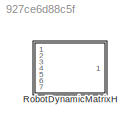
MODEL slx_927ce6d88c5f
KIND model
CONFIG AbsTol = auto
CONFIG EnableMultiTasking = off
CONFIG FixedStep = auto
CONFIG MaxStep = auto
CONFIG MinStep = auto
CONFIG RelTol = 1e-3
CONFIG SampleTimeConstraint = Unconstrained
CONFIG Solver = VariableStepAuto
CONFIG SolverName = VariableStepAuto
CONFIG StartTime = 0.0
CONFIG StopTime = 10.0
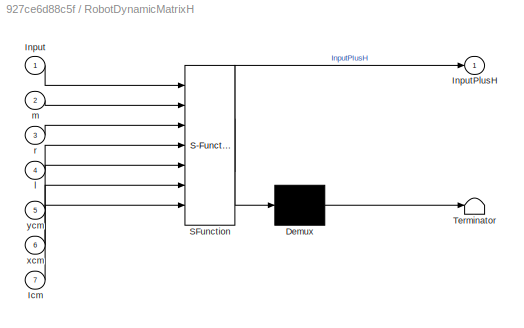
BLOCK [SubSystem] RobotDynamicMatrixH
  ErrorFcn = Stateflow.Translate.translate
  PermitHierarchicalResolution = ExplicitOnly
  Ports = [7, 1]
  RequestExecContextInheritance = off
  SFBlockType = MATLAB Function
  TreatAsAtomicUnit = on
  Variant = off
BLOCK [Demux] RobotDynamicMatrixH/ Demux 
  Outputs = 1
  Ports = [1, 1]
BLOCK [S-Function] RobotDynamicMatrixH/ SFunction 
  EnableBusSupport = off
  FunctionName = sf_sfun
  PortCounts = [7 2]
  Ports = [7, 2]
  SFcnIsStateOwnerBlock = off
  SFunctionDeploymentMode = off
  Tag = Stateflow S-Function RobotDynamicMatrixH_block 2
BLOCK [Terminator] RobotDynamicMatrixH/ Terminator 
BLOCK [Inport] RobotDynamicMatrixH/Icm
  IconDisplay = Port number
  Port = 7
BLOCK [Inport] RobotDynamicMatrixH/Input
  IconDisplay = Port number
BLOCK [Outport] RobotDynamicMatrixH/InputPlusH
  IconDisplay = Port number
BLOCK [Inport] RobotDynamicMatrixH/l
  IconDisplay = Port number
  Port = 4
BLOCK [Inport] RobotDynamicMatrixH/m
  IconDisplay = Port number
  Port = 2
BLOCK [Inport] RobotDynamicMatrixH/r
  IconDisplay = Port number
  Port = 3
BLOCK [Inport] RobotDynamicMatrixH/xcm
  IconDisplay = Port number
  Port = 6
BLOCK [Inport] RobotDynamicMatrixH/ycm
  IconDisplay = Port number
  Port = 5
CHART RobotDynamicMatrixH states=1 transitions=1
  STATE_LABEL 'eML_blk_kernel()'
  STATE_LABEL 'SCRIPT:\nfunction InputPlusH = RobotDynamicMatrixH(Input,m,r,l,ycm,xcm,Icm)\n%#codegen\n\n%    This function was generated by the Symbolic Math Toolbox version 7.2.\n%    08-May-2019 10:16:31\n\nt2 = sqrt(2.0);\nt3 = 1.0./l.^2;\nt4 = r.^2;\nt5 = xcm.^2;\nt6 = m.*t5;\nt7 = ycm.^2;\nt8 = m.*t7;\nt9 = l.*m.*t2.*ycm.*2.0;\nt10 = l.^2;\nt11 = m.*t10.*4.0;\nt12 = l.*m.*t2.*xcm.*2.0;\nt13 = Icm+t6+t8+t9;\nt14 = t3.*t4.*t13...<+490ch>'
